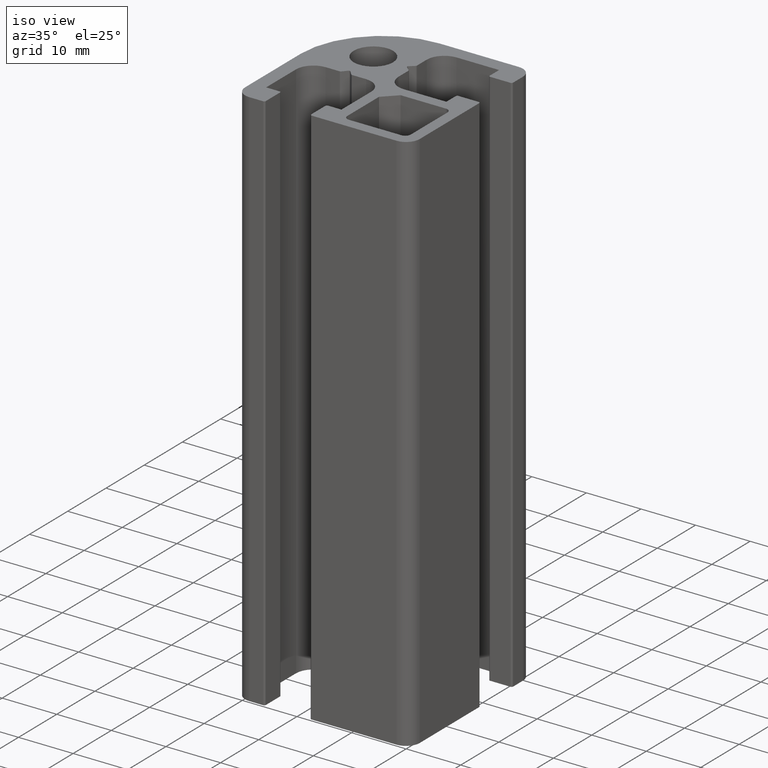
[diagram: clean part render]
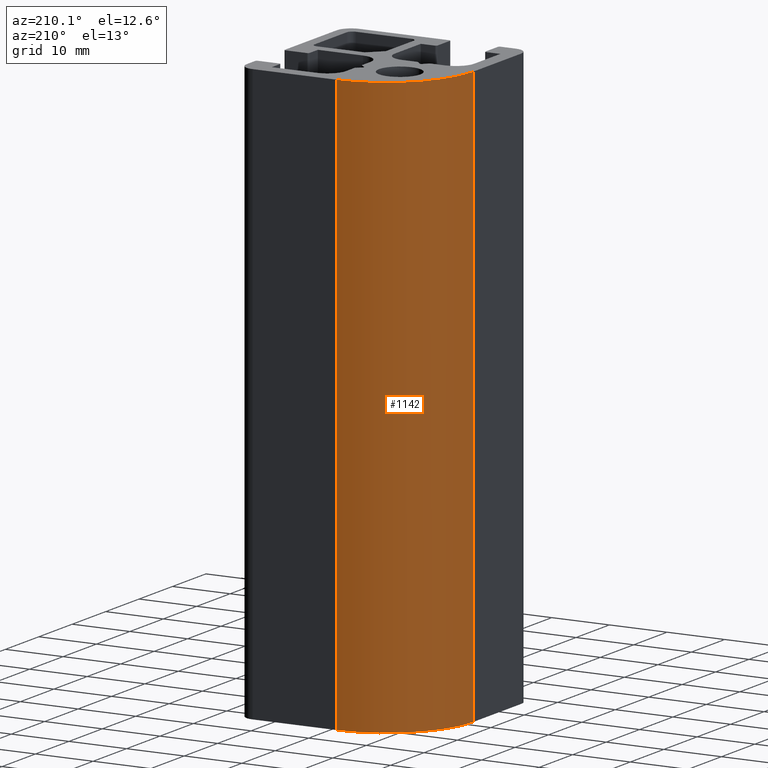
[diagram: tour spotlight — one face highlighted and labeled with its STEP entity id]
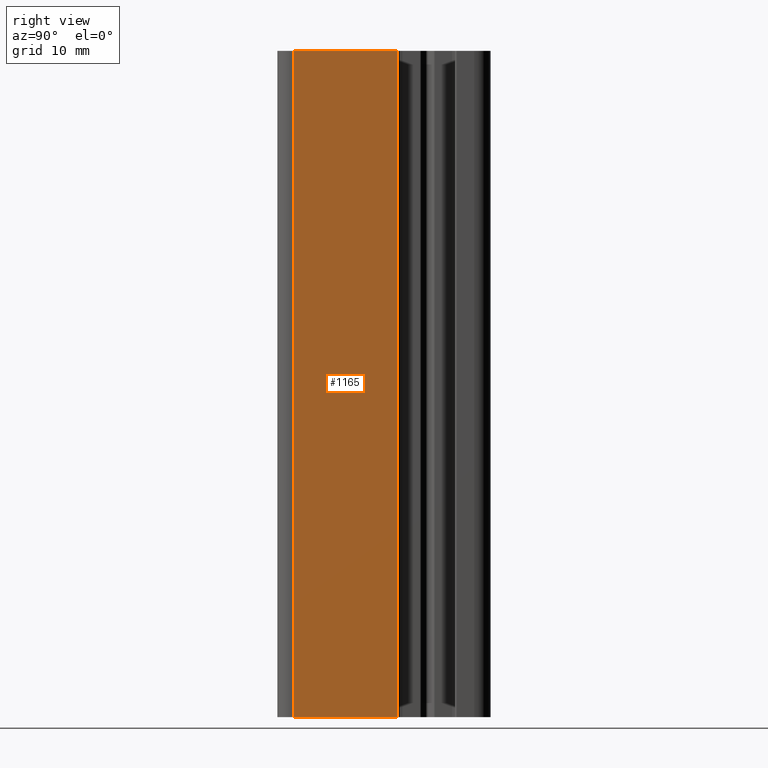
[diagram: tour spotlight — one face highlighted and labeled with its STEP entity id]
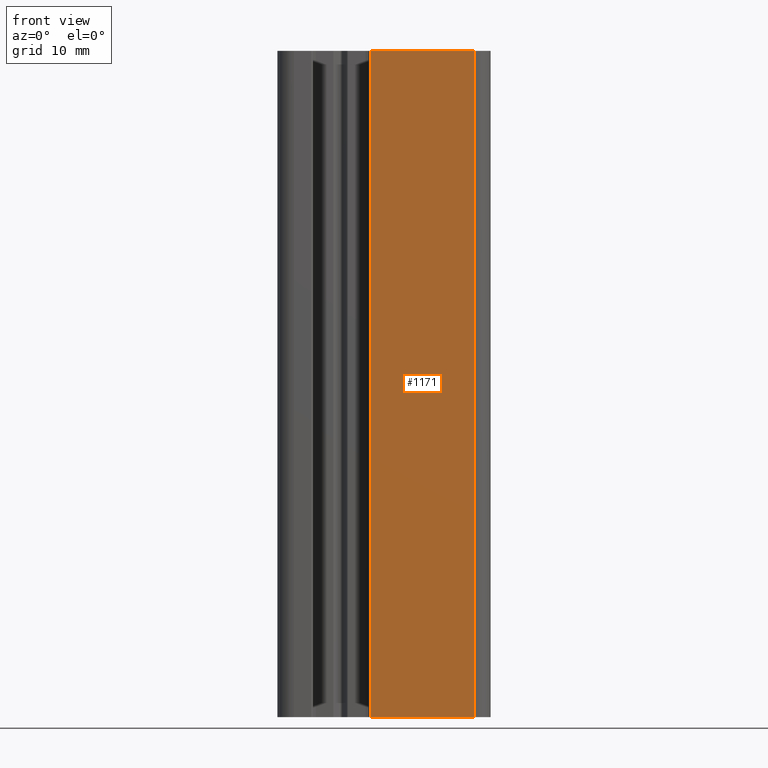
[diagram: tour spotlight — one face highlighted and labeled with its STEP entity id]
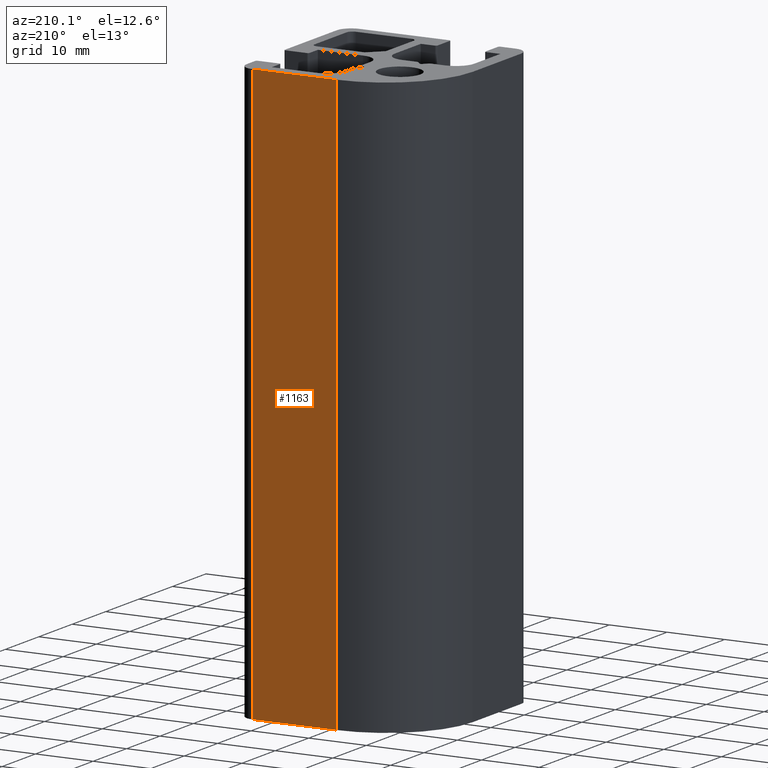
[diagram: tour spotlight — one face highlighted and labeled with its STEP entity id]
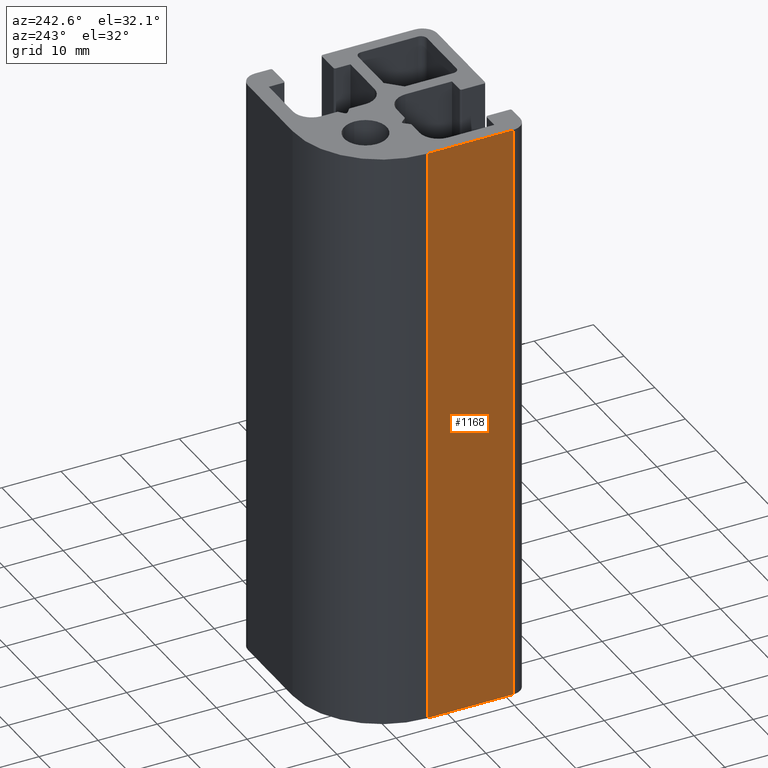
[diagram: tour spotlight — one face highlighted and labeled with its STEP entity id]
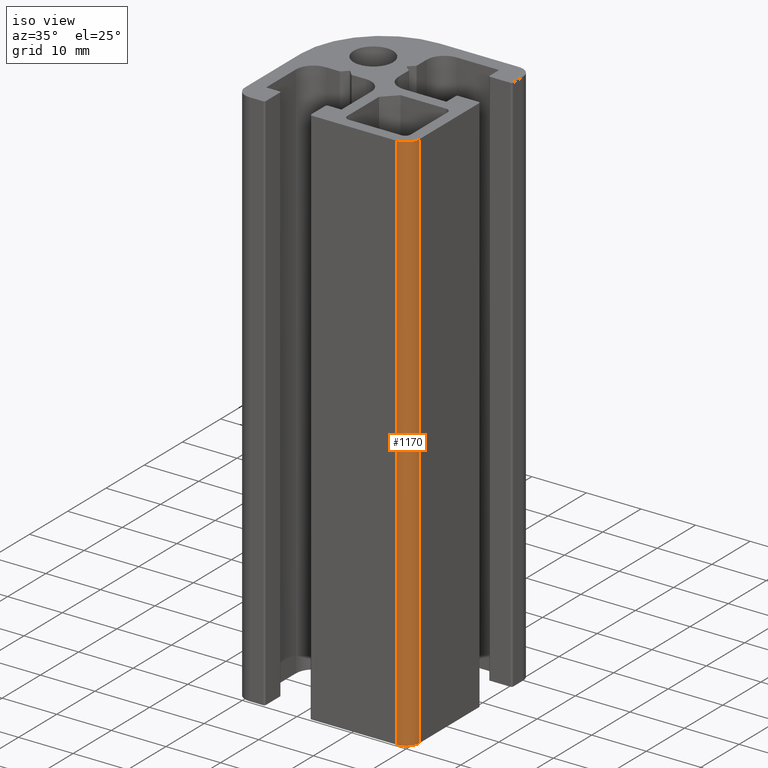
[diagram: tour spotlight — one face highlighted and labeled with its STEP entity id]
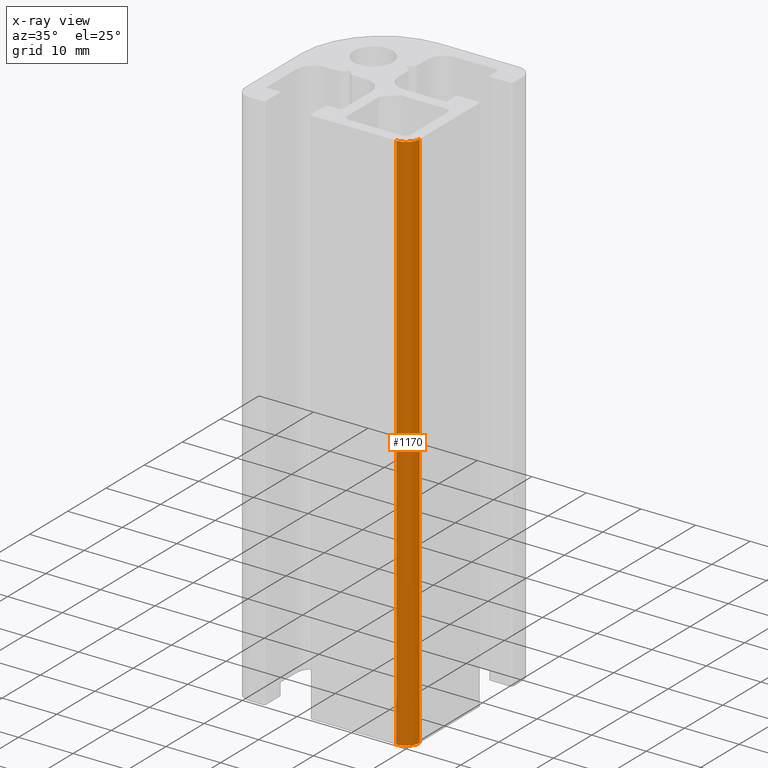
[diagram: x-ray of the same camera — body ghosted, this tour face saturated]
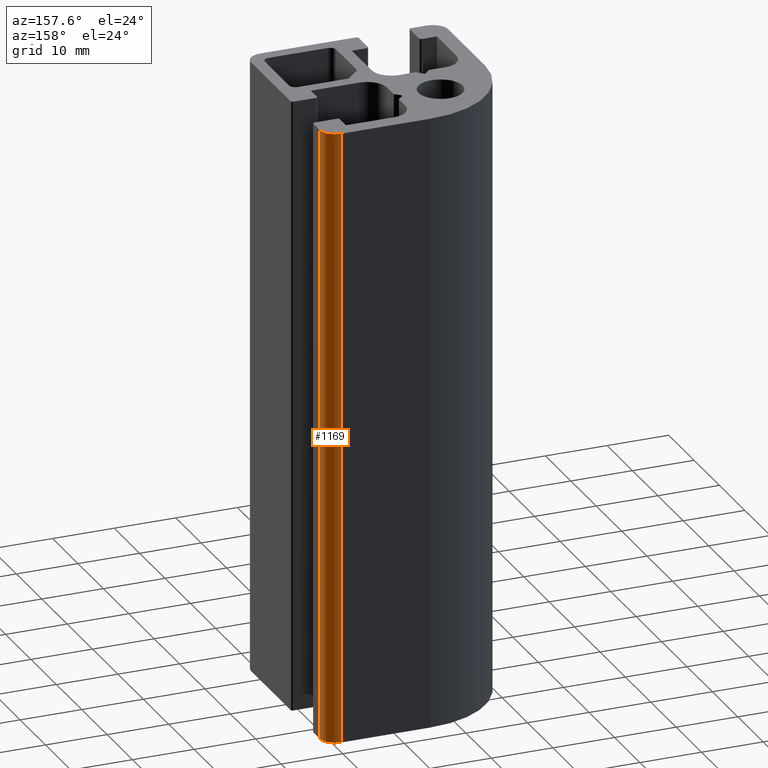
[diagram: tour spotlight — one face highlighted and labeled with its STEP entity id]
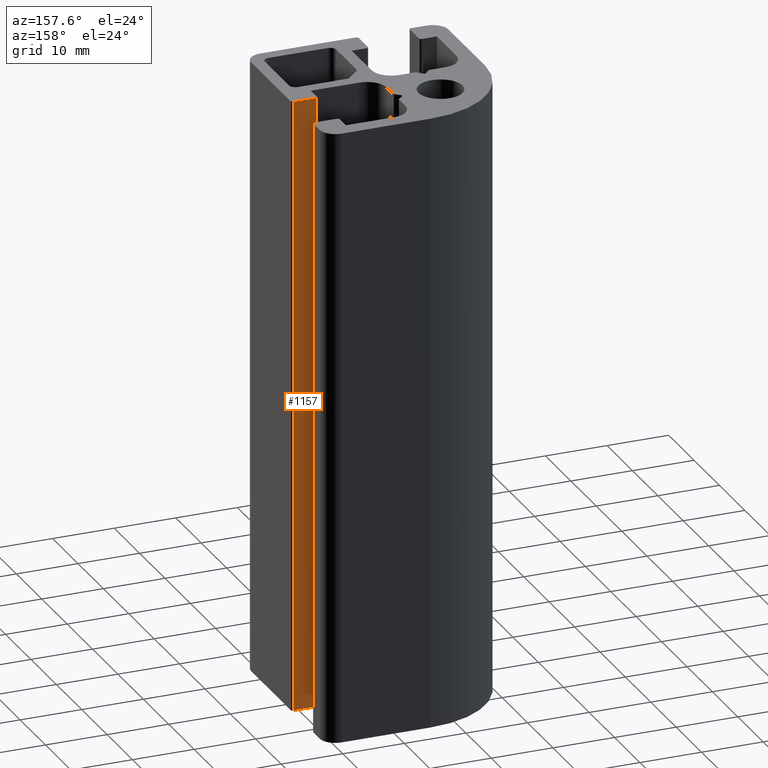
[diagram: tour spotlight — one face highlighted and labeled with its STEP entity id]
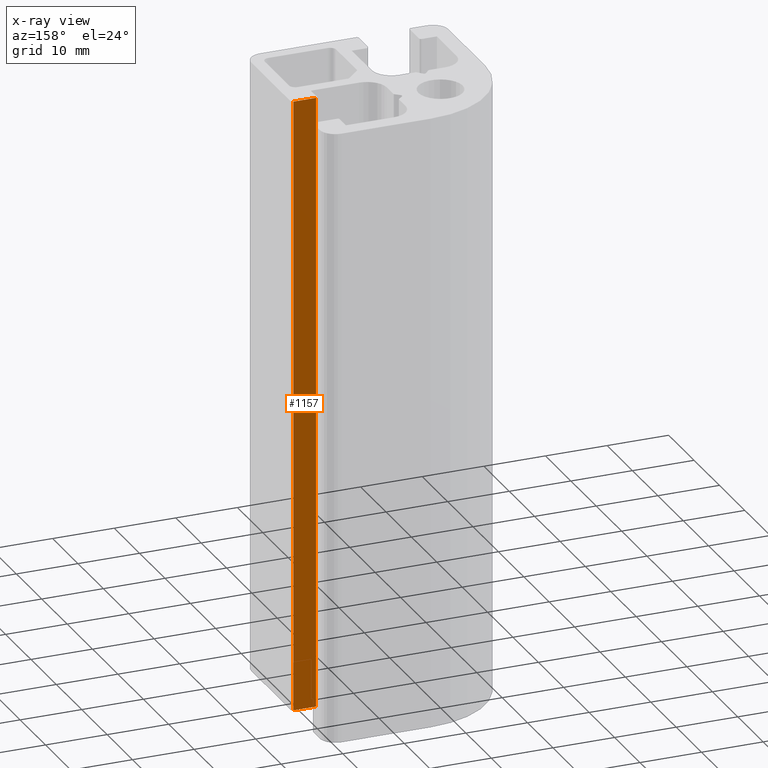
[diagram: x-ray of the same camera — body ghosted, this tour face saturated]
A machine part: a face-by-face anatomy tour. The part has 59 B-rep faces; the first image is the clean iso view, then the 8 largest visible faces are spotlighted one at a time (largest first), each with its STEP entity span.

Face 1 — auxiliary view, entity #1142. In plain terms, the highlighted cylindrical surface (partial cylindrical patch) has radius 15 mm, axis along (0, 0, 1).
Definition (entity closure, byte-faithful):
#106=LINE('',#1804,#224);
#107=LINE('',#1807,#225);
#224=VECTOR('',#1458,100.);
#225=VECTOR('',#1461,100.);
#317=FACE_OUTER_BOUND('',#377,.T.);
#377=EDGE_LOOP('',(#858,#859,#860,#861));
#438=CIRCLE('',#1230,15.);
#439=CIRCLE('',#1231,15.);
#522=VERTEX_POINT('',#1800);
#523=VERTEX_POINT('',#1801);
#524=VERTEX_POINT('',#1803);
#525=VERTEX_POINT('',#1805);
#662=EDGE_CURVE('',#522,#523,#438,.T.);
#663=EDGE_CURVE('',#522,#524,#106,.T.);
#664=EDGE_CURVE('',#525,#524,#439,.T.);
#665=EDGE_CURVE('',#523,#525,#107,.T.);
#858=ORIENTED_EDGE('',*,*,#662,.F.);
#859=ORIENTED_EDGE('',*,*,#663,.T.);
#860=ORIENTED_EDGE('',*,*,#664,.F.);
#861=ORIENTED_EDGE('',*,*,#665,.F.);
#1101=CYLINDRICAL_SURFACE('',#1229,15.);
#1142=ADVANCED_FACE('',(#317),#1101,.T.);
#1229=AXIS2_PLACEMENT_3D('',#1799,#1454,#1455);
#1230=AXIS2_PLACEMENT_3D('',#1802,#1456,#1457);
#1231=AXIS2_PLACEMENT_3D('',#1806,#1459,#1460);
#1454=DIRECTION('center_axis',(0.,0.,1.));
#1455=DIRECTION('ref_axis',(-2.96059473233375E-16,-1.,0.));
#1456=DIRECTION('center_axis',(0.,0.,1.));
#1457=DIRECTION('ref_axis',(-2.96059473233375E-16,-1.,0.));
#1458=DIRECTION('',(0.,0.,-1.));
#1459=DIRECTION('center_axis',(0.,0.,-1.));
#1460=DIRECTION('ref_axis',(-2.96059473233375E-16,-1.,0.));
#1461=DIRECTION('',(0.,0.,-1.));
#1799=CARTESIAN_POINT('Origin',(5.5,-5.5,0.));
#1800=CARTESIAN_POINT('',(5.5,9.5,100.));
#1801=CARTESIAN_POINT('',(-9.5,-5.5,100.));
#1802=CARTESIAN_POINT('Origin',(5.5,-5.5,100.));
#1803=CARTESIAN_POINT('',(5.5,9.5,0.));
#1804=CARTESIAN_POINT('',(5.5,9.5,0.));
#1805=CARTESIAN_POINT('',(-9.5,-5.5,0.));
#1806=CARTESIAN_POINT('Origin',(5.5,-5.5,0.));
#1807=CARTESIAN_POINT('',(-9.5,-5.5,0.));

Face 2 — right view, entity #1165. In plain terms, the highlighted planar face has unit normal (1, 0, 0).
Definition (entity closure, byte-faithful):
#43=PLANE('',#1272);
#142=LINE('',#1905,#260);
#157=LINE('',#1945,#275);
#158=LINE('',#1947,#276);
#159=LINE('',#1948,#277);
#260=VECTOR('',#1554,100.);
#275=VECTOR('',#1593,15.5500000000006);
#276=VECTOR('',#1594,100.);
#277=VECTOR('',#1595,15.5500000000006);
#340=FACE_OUTER_BOUND('',#400,.T.);
#400=EDGE_LOOP('',(#950,#951,#952,#953));
#558=VERTEX_POINT('',#1902);
#559=VERTEX_POINT('',#1904);
#572=VERTEX_POINT('',#1944);
#573=VERTEX_POINT('',#1946);
#713=EDGE_CURVE('',#558,#559,#142,.T.);
#733=EDGE_CURVE('',#558,#572,#157,.T.);
#734=EDGE_CURVE('',#573,#572,#158,.T.);
#735=EDGE_CURVE('',#559,#573,#159,.T.);
#950=ORIENTED_EDGE('',*,*,#713,.F.);
#951=ORIENTED_EDGE('',*,*,#733,.T.);
#952=ORIENTED_EDGE('',*,*,#734,.F.);
#953=ORIENTED_EDGE('',*,*,#735,.F.);
#1165=ADVANCED_FACE('',(#340),#43,.T.);
#1272=AXIS2_PLACEMENT_3D('',#1943,#1591,#1592);
#1554=DIRECTION('',(0.,0.,-1.));
#1591=DIRECTION('center_axis',(1.,1.64477485129653E-16,0.));
#1592=DIRECTION('ref_axis',(0.,1.,0.));
#1593=DIRECTION('',(1.64477485129653E-16,-1.,0.));
#1594=DIRECTION('',(0.,0.,1.));
#1595=DIRECTION('',(1.64477485129653E-16,-1.,0.));
#1902=CARTESIAN_POINT('',(22.5,-4.4499999999994,100.));
#1904=CARTESIAN_POINT('',(22.5,-4.4499999999994,0.));
#1905=CARTESIAN_POINT('',(22.5,-4.4499999999994,0.));
#1943=CARTESIAN_POINT('Origin',(22.5,-20.,0.));
#1944=CARTESIAN_POINT('',(22.5,-20.,100.));
#1945=CARTESIAN_POINT('',(22.5,-13.25,100.));
#1946=CARTESIAN_POINT('',(22.5,-20.,0.));
#1947=CARTESIAN_POINT('',(22.5,-20.,0.));
#1948=CARTESIAN_POINT('',(22.5,-13.25,0.));

Face 3 — front view, entity #1171. In plain terms, the highlighted planar face has unit normal (-0, -1, 0).
Definition (entity closure, byte-faithful):
#46=PLANE('',#1284);
#73=LINE('',#1711,#191);
#161=LINE('',#1956,#279);
#164=LINE('',#1968,#282);
#165=LINE('',#1970,#283);
#191=VECTOR('',#1367,100.);
#279=VECTOR('',#1605,15.5500000000006);
#282=VECTOR('',#1622,100.);
#283=VECTOR('',#1625,15.5500000000006);
#346=FACE_OUTER_BOUND('',#408,.T.);
#408=EDGE_LOOP('',(#1027,#1028,#1029,#1030));
#491=VERTEX_POINT('',#1705);
#493=VERTEX_POINT('',#1709);
#575=VERTEX_POINT('',#1954);
#577=VERTEX_POINT('',#1966);
#617=EDGE_CURVE('',#491,#493,#73,.T.);
#740=EDGE_CURVE('',#575,#493,#161,.T.);
#746=EDGE_CURVE('',#575,#577,#164,.T.);
#747=EDGE_CURVE('',#577,#491,#165,.T.);
#1027=ORIENTED_EDGE('',*,*,#617,.T.);
#1028=ORIENTED_EDGE('',*,*,#740,.F.);
#1029=ORIENTED_EDGE('',*,*,#746,.T.);
#1030=ORIENTED_EDGE('',*,*,#747,.T.);
#1171=ADVANCED_FACE('',(#346),#46,.T.);
#1284=AXIS2_PLACEMENT_3D('',#1969,#1623,#1624);
#1367=DIRECTION('',(0.,0.,-1.));
#1605=DIRECTION('',(-1.,1.64477485129653E-16,0.));
#1622=DIRECTION('',(0.,0.,1.));
#1623=DIRECTION('center_axis',(-1.64477485129653E-16,-1.,0.));
#1624=DIRECTION('ref_axis',(1.,0.,0.));
#1625=DIRECTION('',(-1.,1.64477485129653E-16,0.));
#1705=CARTESIAN_POINT('',(4.4499999999994,-22.5,100.));
#1709=CARTESIAN_POINT('',(4.4499999999994,-22.5,0.));
#1711=CARTESIAN_POINT('',(4.4499999999994,-22.5,0.));
#1954=CARTESIAN_POINT('',(20.,-22.5,0.));
#1956=CARTESIAN_POINT('',(-0.250000000000003,-22.5,0.));
#1966=CARTESIAN_POINT('',(20.,-22.5,100.));
#1968=CARTESIAN_POINT('',(20.,-22.5,0.));
#1969=CARTESIAN_POINT('Origin',(-7.,-22.5,0.));
#1970=CARTESIAN_POINT('',(-0.250000000000003,-22.5,100.));

Face 4 — auxiliary view, entity #1163. In plain terms, the highlighted planar face has unit normal (0, 1, 0).
Definition (entity closure, byte-faithful):
#41=PLANE('',#1270);
#106=LINE('',#1804,#224);
#151=LINE('',#1933,#269);
#152=LINE('',#1935,#270);
#153=LINE('',#1936,#271);
#224=VECTOR('',#1458,100.);
#269=VECTOR('',#1583,14.5);
#270=VECTOR('',#1584,100.);
#271=VECTOR('',#1585,14.5);
#338=FACE_OUTER_BOUND('',#398,.T.);
#398=EDGE_LOOP('',(#942,#943,#944,#945));
#522=VERTEX_POINT('',#1800);
#524=VERTEX_POINT('',#1803);
#568=VERTEX_POINT('',#1932);
#569=VERTEX_POINT('',#1934);
#663=EDGE_CURVE('',#522,#524,#106,.T.);
#727=EDGE_CURVE('',#522,#568,#151,.T.);
#728=EDGE_CURVE('',#569,#568,#152,.T.);
#729=EDGE_CURVE('',#524,#569,#153,.T.);
#942=ORIENTED_EDGE('',*,*,#663,.F.);
#943=ORIENTED_EDGE('',*,*,#727,.T.);
#944=ORIENTED_EDGE('',*,*,#728,.F.);
#945=ORIENTED_EDGE('',*,*,#729,.F.);
#1163=ADVANCED_FACE('',(#338),#41,.T.);
#1270=AXIS2_PLACEMENT_3D('',#1931,#1581,#1582);
#1458=DIRECTION('',(0.,0.,-1.));
#1581=DIRECTION('center_axis',(8.22387425648264E-17,1.,0.));
#1582=DIRECTION('ref_axis',(-1.,0.,0.));
#1583=DIRECTION('',(1.,-8.22387425648264E-17,0.));
#1584=DIRECTION('',(0.,0.,1.));
#1585=DIRECTION('',(1.,-8.22387425648264E-17,0.));
#1800=CARTESIAN_POINT('',(5.5,9.5,100.));
#1803=CARTESIAN_POINT('',(5.5,9.5,0.));
#1804=CARTESIAN_POINT('',(5.5,9.5,0.));
#1931=CARTESIAN_POINT('Origin',(20.,9.5,0.));
#1932=CARTESIAN_POINT('',(20.,9.5,100.));
#1933=CARTESIAN_POINT('',(13.25,9.5,100.));
#1934=CARTESIAN_POINT('',(20.,9.5,0.));
#1935=CARTESIAN_POINT('',(20.,9.5,0.));
#1936=CARTESIAN_POINT('',(13.25,9.5,0.));

Face 5 — auxiliary view, entity #1168. In plain terms, the highlighted planar face has unit normal (-1, 0, 0).
Definition (entity closure, byte-faithful):
#45=PLANE('',#1279);
#107=LINE('',#1807,#225);
#160=LINE('',#1952,#278);
#162=LINE('',#1960,#280);
#163=LINE('',#1962,#281);
#225=VECTOR('',#1461,100.);
#278=VECTOR('',#1600,14.5);
#280=VECTOR('',#1610,100.);
#281=VECTOR('',#1613,14.5);
#343=FACE_OUTER_BOUND('',#405,.T.);
#405=EDGE_LOOP('',(#1015,#1016,#1017,#1018));
#523=VERTEX_POINT('',#1801);
#525=VERTEX_POINT('',#1805);
#574=VERTEX_POINT('',#1950);
#576=VERTEX_POINT('',#1958);
#665=EDGE_CURVE('',#523,#525,#107,.T.);
#737=EDGE_CURVE('',#574,#525,#160,.T.);
#742=EDGE_CURVE('',#574,#576,#162,.T.);
#743=EDGE_CURVE('',#576,#523,#163,.T.);
#1015=ORIENTED_EDGE('',*,*,#665,.T.);
#1016=ORIENTED_EDGE('',*,*,#737,.F.);
#1017=ORIENTED_EDGE('',*,*,#742,.T.);
#1018=ORIENTED_EDGE('',*,*,#743,.T.);
#1168=ADVANCED_FACE('',(#343),#45,.T.);
#1279=AXIS2_PLACEMENT_3D('',#1961,#1611,#1612);
#1461=DIRECTION('',(0.,0.,-1.));
#1600=DIRECTION('',(0.,1.,0.));
#1610=DIRECTION('',(0.,0.,1.));
#1611=DIRECTION('center_axis',(-1.,0.,0.));
#1612=DIRECTION('ref_axis',(0.,-1.,0.));
#1613=DIRECTION('',(0.,1.,0.));
#1801=CARTESIAN_POINT('',(-9.5,-5.5,100.));
#1805=CARTESIAN_POINT('',(-9.5,-5.5,0.));
#1807=CARTESIAN_POINT('',(-9.5,-5.5,0.));
#1950=CARTESIAN_POINT('',(-9.5,-20.,0.));
#1952=CARTESIAN_POINT('',(-9.5,0.250000000000001,0.));
#1958=CARTESIAN_POINT('',(-9.5,-20.,100.));
#1960=CARTESIAN_POINT('',(-9.5,-20.,0.));
#1961=CARTESIAN_POINT('Origin',(-9.5,7.,0.));
#1962=CARTESIAN_POINT('',(-9.5,0.250000000000001,100.));

Face 6 — iso view, entity #1170. An x-ray twin of the same camera follows (body ghosted, this face saturated) — the face is partly hidden behind the body. In plain terms, the highlighted cylindrical surface (edge-blend (fillet) strip) has radius 2.5 mm, axis along (0, 0, 1).
Definition (entity closure, byte-faithful):
#158=LINE('',#1947,#276);
#164=LINE('',#1968,#282);
#276=VECTOR('',#1594,100.);
#282=VECTOR('',#1622,100.);
#345=FACE_OUTER_BOUND('',#407,.T.);
#407=EDGE_LOOP('',(#1023,#1024,#1025,#1026));
#460=CIRCLE('',#1276,2.5);
#463=CIRCLE('',#1283,2.5);
#572=VERTEX_POINT('',#1944);
#573=VERTEX_POINT('',#1946);
#575=VERTEX_POINT('',#1954);
#577=VERTEX_POINT('',#1966);
#734=EDGE_CURVE('',#573,#572,#158,.T.);
#739=EDGE_CURVE('',#573,#575,#460,.T.);
#745=EDGE_CURVE('',#572,#577,#463,.T.);
#746=EDGE_CURVE('',#575,#577,#164,.T.);
#1023=ORIENTED_EDGE('',*,*,#745,.T.);
#1024=ORIENTED_EDGE('',*,*,#746,.F.);
#1025=ORIENTED_EDGE('',*,*,#739,.F.);
#1026=ORIENTED_EDGE('',*,*,#734,.T.);
#1113=CYLINDRICAL_SURFACE('',#1282,2.5);
#1170=ADVANCED_FACE('',(#345),#1113,.T.);
#1276=AXIS2_PLACEMENT_3D('',#1955,#1603,#1604);
#1282=AXIS2_PLACEMENT_3D('',#1965,#1618,#1619);
#1283=AXIS2_PLACEMENT_3D('',#1967,#1620,#1621);
#1594=DIRECTION('',(0.,0.,1.));
#1603=DIRECTION('center_axis',(0.,0.,-1.));
#1604=DIRECTION('ref_axis',(1.77635683940025E-15,1.,0.));
#1618=DIRECTION('center_axis',(0.,0.,1.));
#1619=DIRECTION('ref_axis',(1.77635683940025E-15,1.,0.));
#1620=DIRECTION('center_axis',(0.,0.,-1.));
#1621=DIRECTION('ref_axis',(1.77635683940025E-15,1.,0.));
#1622=DIRECTION('',(0.,0.,1.));
#1944=CARTESIAN_POINT('',(22.5,-20.,100.));
#1946=CARTESIAN_POINT('',(22.5,-20.,0.));
#1947=CARTESIAN_POINT('',(22.5,-20.,0.));
#1954=CARTESIAN_POINT('',(20.,-22.5,0.));
#1955=CARTESIAN_POINT('Origin',(20.,-20.,0.));
#1965=CARTESIAN_POINT('Origin',(20.,-20.,0.));
#1966=CARTESIAN_POINT('',(20.,-22.5,100.));
#1967=CARTESIAN_POINT('Origin',(20.,-20.,100.));
#1968=CARTESIAN_POINT('',(20.,-22.5,0.));

Face 7 — auxiliary view, entity #1169. In plain terms, the highlighted cylindrical surface (edge-blend (fillet) strip) has radius 2.5 mm, axis along (0, 0, 1).
Definition (entity closure, byte-faithful):
#152=LINE('',#1935,#270);
#155=LINE('',#1941,#273);
#270=VECTOR('',#1584,100.);
#273=VECTOR('',#1589,100.);
#344=FACE_OUTER_BOUND('',#406,.T.);
#406=EDGE_LOOP('',(#1019,#1020,#1021,#1022));
#459=CIRCLE('',#1275,2.5);
#462=CIRCLE('',#1281,2.5);
#568=VERTEX_POINT('',#1932);
#569=VERTEX_POINT('',#1934);
#570=VERTEX_POINT('',#1938);
#571=VERTEX_POINT('',#1940);
#728=EDGE_CURVE('',#569,#568,#152,.T.);
#731=EDGE_CURVE('',#570,#571,#155,.T.);
#738=EDGE_CURVE('',#569,#570,#459,.T.);
#744=EDGE_CURVE('',#568,#571,#462,.T.);
#1019=ORIENTED_EDGE('',*,*,#744,.T.);
#1020=ORIENTED_EDGE('',*,*,#731,.F.);
#1021=ORIENTED_EDGE('',*,*,#738,.F.);
#1022=ORIENTED_EDGE('',*,*,#728,.T.);
#1112=CYLINDRICAL_SURFACE('',#1280,2.5);
#1169=ADVANCED_FACE('',(#344),#1112,.T.);
#1275=AXIS2_PLACEMENT_3D('',#1953,#1601,#1602);
#1280=AXIS2_PLACEMENT_3D('',#1963,#1614,#1615);
#1281=AXIS2_PLACEMENT_3D('',#1964,#1616,#1617);
#1584=DIRECTION('',(0.,0.,1.));
#1589=DIRECTION('',(0.,0.,1.));
#1601=DIRECTION('center_axis',(0.,0.,-1.));
#1602=DIRECTION('ref_axis',(-1.,-1.33226762955019E-15,0.));
#1614=DIRECTION('center_axis',(0.,0.,1.));
#1615=DIRECTION('ref_axis',(-1.,-1.33226762955019E-15,0.));
#1616=DIRECTION('center_axis',(0.,0.,-1.));
#1617=DIRECTION('ref_axis',(-1.,-1.33226762955019E-15,0.));
#1932=CARTESIAN_POINT('',(20.,9.5,100.));
#1934=CARTESIAN_POINT('',(20.,9.5,0.));
#1935=CARTESIAN_POINT('',(20.,9.5,0.));
#1938=CARTESIAN_POINT('',(22.5,7.,0.));
#1940=CARTESIAN_POINT('',(22.5,7.,100.));
#1941=CARTESIAN_POINT('',(22.5,7.,0.));
#1953=CARTESIAN_POINT('Origin',(20.,7.,0.));
#1963=CARTESIAN_POINT('Origin',(20.,7.,0.));
#1964=CARTESIAN_POINT('Origin',(20.,7.,100.));

Face 8 — auxiliary view, entity #1157. An x-ray twin of the same camera follows (body ghosted, this face saturated) — the face is partly hidden behind the body. In plain terms, the highlighted planar face has unit normal (-0, -1, 0).
Definition (entity closure, byte-faithful):
#38=PLANE('',#1258);
#138=LINE('',#1893,#256);
#139=LINE('',#1897,#257);
#140=LINE('',#1899,#258);
#141=LINE('',#1900,#259);
#256=VECTOR('',#1542,100.);
#257=VECTOR('',#1547,3.70000000000119);
#258=VECTOR('',#1548,100.);
#259=VECTOR('',#1549,3.70000000000119);
#332=FACE_OUTER_BOUND('',#392,.T.);
#392=EDGE_LOOP('',(#918,#919,#920,#921));
#554=VERTEX_POINT('',#1890);
#555=VERTEX_POINT('',#1892);
#556=VERTEX_POINT('',#1896);
#557=VERTEX_POINT('',#1898);
#707=EDGE_CURVE('',#555,#554,#138,.T.);
#709=EDGE_CURVE('',#556,#554,#139,.T.);
#710=EDGE_CURVE('',#557,#556,#140,.T.);
#711=EDGE_CURVE('',#555,#557,#141,.T.);
#918=ORIENTED_EDGE('',*,*,#709,.F.);
#919=ORIENTED_EDGE('',*,*,#710,.F.);
#920=ORIENTED_EDGE('',*,*,#711,.F.);
#921=ORIENTED_EDGE('',*,*,#707,.T.);
#1157=ADVANCED_FACE('',(#332),#38,.F.);
#1258=AXIS2_PLACEMENT_3D('',#1895,#1545,#1546);
#1542=DIRECTION('',(0.,0.,1.));
#1545=DIRECTION('center_axis',(-7.50150692314054E-16,-1.,0.));
#1546=DIRECTION('ref_axis',(1.,-7.105427357601E-16,0.));
#1547=DIRECTION('',(-1.,7.50150692314054E-16,0.));
#1548=DIRECTION('',(0.,0.,1.));
#1549=DIRECTION('',(1.,-7.50150692314054E-16,0.));
#1890=CARTESIAN_POINT('',(18.4999999999994,-4.15,100.));
#1892=CARTESIAN_POINT('',(18.4999999999994,-4.15,0.));
#1893=CARTESIAN_POINT('',(18.4999999999994,-4.15,0.));
#1895=CARTESIAN_POINT('Origin',(18.4999999999994,-4.15,0.));
#1896=CARTESIAN_POINT('',(22.2000000000006,-4.15,100.));
#1897=CARTESIAN_POINT('',(12.4999999999997,-4.14999999999999,100.));
#1898=CARTESIAN_POINT('',(22.2000000000006,-4.15,0.));
#1899=CARTESIAN_POINT('',(22.2000000000006,-4.15,0.));
#1900=CARTESIAN_POINT('',(12.4999999999997,-4.14999999999999,0.));